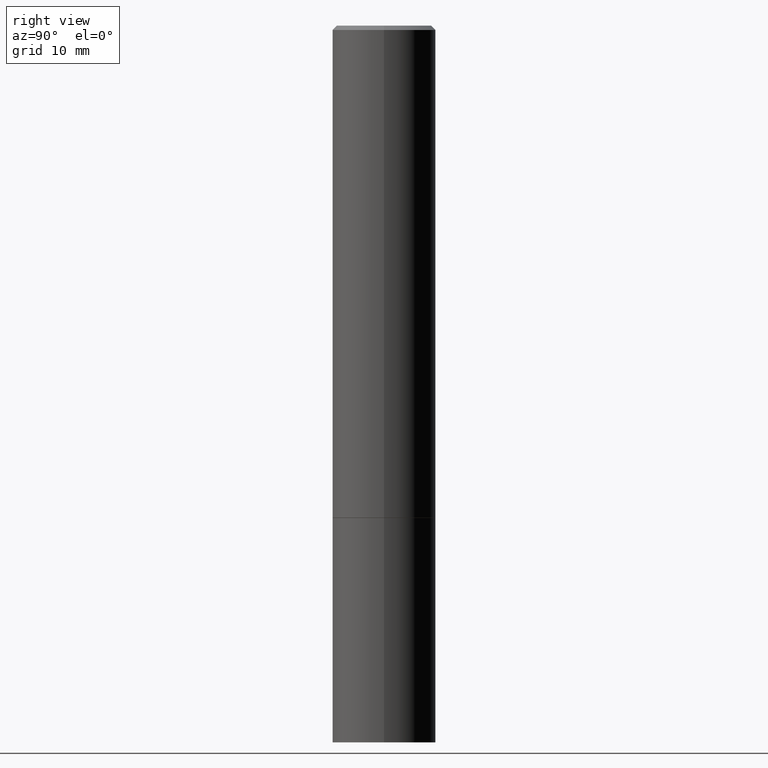
[diagram: clean part render]
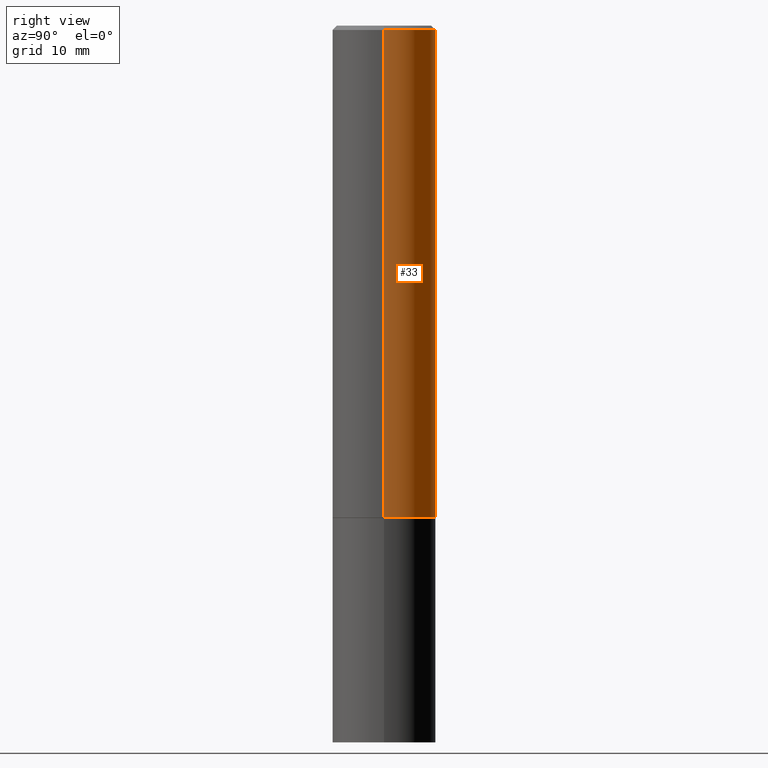
[diagram: same view with one face highlighted and labeled with its STEP entity id]
A machine part, right view. The second image highlights one B-rep face of the part: STEP entity #33.
In plain terms, the highlighted cylindrical surface (partial cylindrical patch) has radius 5.9995 mm, axis along (-0, 0, 1).
Its self-contained STEP definition (entity closure, byte-faithful):
#4 = VERTEX_POINT ( 'NONE', #168 ) ;
#24 = DIRECTION ( 'NONE',  ( -2.445468806185136597E-29, 3.491481338843145583E-15, 1.000000000000000000 ) ) ;
#33 = ADVANCED_FACE ( 'NONE', ( #185 ), #155, .T. ) ;
#39 = ORIENTED_EDGE ( 'NONE', *, *, #73, .T. ) ;
#47 = DIRECTION ( 'NONE',  ( -2.445468806185136877E-29, 3.491481338843145188E-15, 1.000000000000000000 ) ) ;
#65 = ORIENTED_EDGE ( 'NONE', *, *, #221, .T. ) ;
#73 = EDGE_CURVE ( 'NONE', #153, #237, #320, .T. ) ;
#80 = DIRECTION ( 'NONE',  ( 1.000000000000000000, -6.982962677686266711E-15, 4.876176775795935793E-29 ) ) ;
#82 = DIRECTION ( 'NONE',  ( -2.445468806185136597E-29, 3.491481338843145583E-15, 1.000000000000000000 ) ) ;
#103 = DIRECTION ( 'NONE',  ( -2.445468806185136877E-29, 3.491481338843145188E-15, 1.000000000000000000 ) ) ;
#110 = CARTESIAN_POINT ( 'NONE',  ( -0.2361999999999997157, 1.579546157692631255E-15, -0.02000000000000005246 ) ) ;
#120 = VERTEX_POINT ( 'NONE', #325 ) ;
#125 = EDGE_CURVE ( 'NONE', #120, #237, #265, .T. ) ;
#127 = CARTESIAN_POINT ( 'NONE',  ( 0.000000000000000000, 0.000000000000000000, 0.000000000000000000 ) ) ;
#129 = LINE ( 'NONE', #291, #156 ) ;
#132 = EDGE_CURVE ( 'NONE', #4, #120, #129, .T. ) ;
#142 = AXIS2_PLACEMENT_3D ( 'NONE', #127, #82, #80 ) ;
#148 = ORIENTED_EDGE ( 'NONE', *, *, #125, .F. ) ;
#153 = VERTEX_POINT ( 'NONE', #355 ) ;
#155 = CYLINDRICAL_SURFACE ( 'NONE', #142, 0.2361999999999998545 ) ;
#156 = VECTOR ( 'NONE', #47, 39.37007874015748143 ) ;
#168 = CARTESIAN_POINT ( 'NONE',  ( 0.2361999999999999655, -9.481117575628557435E-15, -2.243100000000000094 ) ) ;
#176 = ORIENTED_EDGE ( 'NONE', *, *, #132, .F. ) ;
#185 = FACE_OUTER_BOUND ( 'NONE', #187, .T. ) ;
#186 = DIRECTION ( 'NONE',  ( 1.000000000000000000, -6.982962677686266711E-15, 0.000000000000000000 ) ) ;
#187 = EDGE_LOOP ( 'NONE', ( #65, #39, #148, #176 ) ) ;
#188 = CIRCLE ( 'NONE', #200, 0.2361999999999999655 ) ;
#200 = AXIS2_PLACEMENT_3D ( 'NONE', #303, #249, #365 ) ;
#221 = EDGE_CURVE ( 'NONE', #4, #153, #188, .T. ) ;
#237 = VERTEX_POINT ( 'NONE', #110 ) ;
#249 = DIRECTION ( 'NONE',  ( -2.445468806185136597E-29, 3.491481338843145583E-15, 1.000000000000000000 ) ) ;
#265 = CIRCLE ( 'NONE', #313, 0.2361999999999997157 ) ;
#271 = CARTESIAN_POINT ( 'NONE',  ( 4.890937612370285420E-31, -6.982962677686308865E-17, -0.02000000000000005246 ) ) ;
#278 = VECTOR ( 'NONE', #103, 39.37007874015748143 ) ;
#291 = CARTESIAN_POINT ( 'NONE',  ( 0.2361999999999998545, -1.649375784469495145E-15, 1.151752954442999387E-29 ) ) ;
#303 = CARTESIAN_POINT ( 'NONE',  ( 5.485431079153880270E-29, -7.831741791159060910E-15, -2.243100000000000094 ) ) ;
#313 = AXIS2_PLACEMENT_3D ( 'NONE', #271, #24, #186 ) ;
#317 = CARTESIAN_POINT ( 'NONE',  ( -0.2361999999999998545, 1.678301941865355605E-15, -1.161852468318208056E-29 ) ) ;
#320 = LINE ( 'NONE', #317, #278 ) ;
#325 = CARTESIAN_POINT ( 'NONE',  ( 0.2361999999999997157, -1.690279253850496996E-15, -0.02000000000000005246 ) ) ;
#355 = CARTESIAN_POINT ( 'NONE',  ( -0.2361999999999999655, -2.272483767102603343E-15, -2.243100000000000094 ) ) ;
#365 = DIRECTION ( 'NONE',  ( 1.000000000000000000, -6.982962677686269866E-15, 0.000000000000000000 ) ) ;